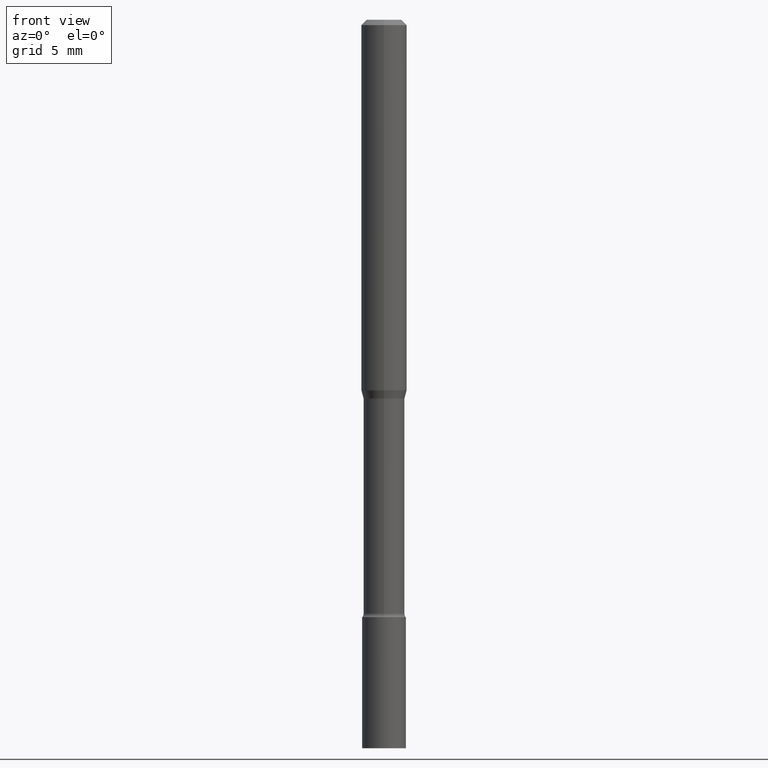
[diagram: clean part render]
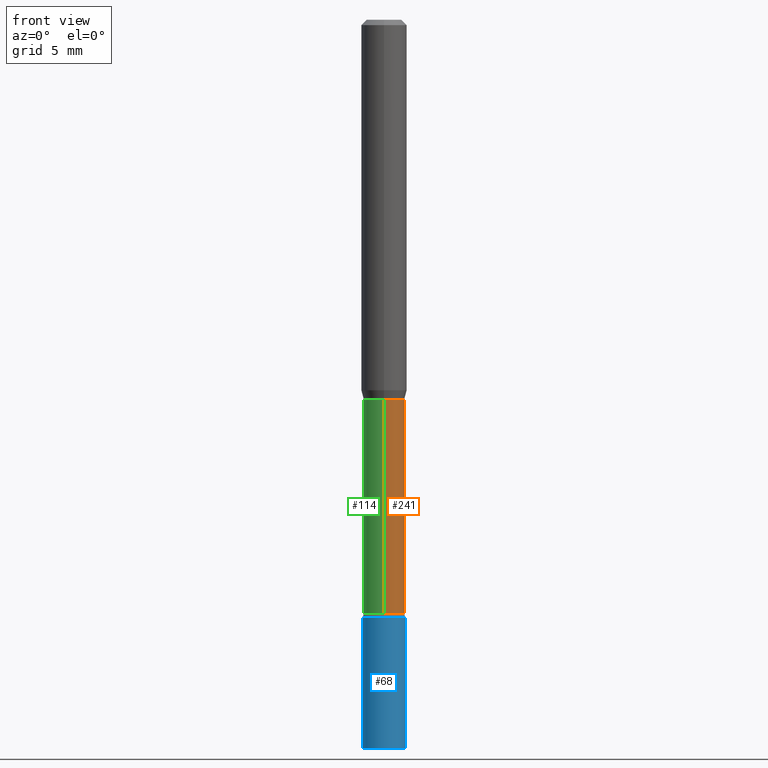
[diagram: same view with three faces highlighted in distinct colors, each labeled with its STEP entity id]
A machine part, front view with three faces highlighted in distinct colors.
Their STEP definitions:

[orange] entity #241 — the highlighted cylindrical surface (edge-blend (fillet) strip) has radius 1.4326 mm, axis along (-0, 0, 1).
#7 = AXIS2_PLACEMENT_3D ( 'NONE', #405, #157, #76 ) ;
#29 = ORIENTED_EDGE ( 'NONE', *, *, #348, .T. ) ;
#36 = DIRECTION ( 'NONE',  ( -6.982962677686265133E-15, -1.000000000000000000, 3.491492737525173500E-15 ) ) ;
#40 = CARTESIAN_POINT ( 'NONE',  ( 4.007461029686965945E-16, 0.05640000000000001956, -1.969201903964198546E-16 ) ) ;
#47 = DIRECTION ( 'NONE',  ( -2.445460846528019435E-29, 3.491492737525173105E-15, 1.000000000000000000 ) ) ;
#76 = DIRECTION ( 'NONE',  ( -6.982962677686265922E-15, -1.000000000000000000, 2.421851058212999609E-15 ) ) ;
#86 = DIRECTION ( 'NONE',  ( -2.445460846528019435E-29, 3.491492737525173105E-15, 1.000000000000000000 ) ) ;
#117 = DIRECTION ( 'NONE',  ( -2.445460846528019435E-29, 3.491492737525173105E-15, 1.000000000000000000 ) ) ;
#131 = AXIS2_PLACEMENT_3D ( 'NONE', #516, #519, #36 ) ;
#143 = CIRCLE ( 'NONE', #384, 0.05640000000000004732 ) ;
#147 = EDGE_CURVE ( 'NONE', #425, #190, #286, .T. ) ;
#157 = DIRECTION ( 'NONE',  ( -2.445460846528019435E-29, 3.491492737525173105E-15, 1.000000000000000000 ) ) ;
#171 = DIRECTION ( 'NONE',  ( -6.982962677686265133E-15, -1.000000000000000000, 4.843702116425994485E-15 ) ) ;
#178 = VERTEX_POINT ( 'NONE', #288 ) ;
#190 = VERTEX_POINT ( 'NONE', #201 ) ;
#201 = CARTESIAN_POINT ( 'NONE',  ( 4.007461029687364320E-16, 0.05639999999999635583, -1.041974787463811003 ) ) ;
#207 = EDGE_CURVE ( 'NONE', #357, #190, #367, .T. ) ;
#241 = ADVANCED_FACE ( 'NONE', ( #401 ), #249, .T. ) ;
#249 = CYLINDRICAL_SURFACE ( 'NONE', #131, 0.05640000000000001956 ) ;
#261 = ORIENTED_EDGE ( 'NONE', *, *, #207, .F. ) ;
#286 = LINE ( 'NONE', #40, #478 ) ;
#288 = CARTESIAN_POINT ( 'NONE',  ( -3.938390950214658630E-16, -0.05640000000000573721, -1.630251153914436646 ) ) ;
#316 = ORIENTED_EDGE ( 'NONE', *, *, #147, .T. ) ;
#324 = CARTESIAN_POINT ( 'NONE',  ( 4.135358722124185524E-16, 0.05639999999999435049, -1.630251153914437090 ) ) ;
#335 = CARTESIAN_POINT ( 'NONE',  ( -3.938390950214798652E-16, -0.05640000000000363473, -1.041974787463810781 ) ) ;
#340 = CARTESIAN_POINT ( 'NONE',  ( 3.986715366904879250E-29, -5.692010064234288967E-15, -1.630251153914436868 ) ) ;
#347 = EDGE_LOOP ( 'NONE', ( #29, #316, #261, #472 ) ) ;
#348 = EDGE_CURVE ( 'NONE', #178, #425, #143, .T. ) ;
#355 = VECTOR ( 'NONE', #86, 39.37007874015748143 ) ;
#357 = VERTEX_POINT ( 'NONE', #335 ) ;
#363 = EDGE_CURVE ( 'NONE', #178, #357, #380, .T. ) ;
#367 = CIRCLE ( 'NONE', #7, 0.05639999999999999181 ) ;
#380 = LINE ( 'NONE', #415, #355 ) ;
#384 = AXIS2_PLACEMENT_3D ( 'NONE', #340, #47, #171 ) ;
#401 = FACE_OUTER_BOUND ( 'NONE', #347, .T. ) ;
#405 = CARTESIAN_POINT ( 'NONE',  ( 2.548108545812103926E-29, -3.638047403114231649E-15, -1.041974787463810781 ) ) ;
#415 = CARTESIAN_POINT ( 'NONE',  ( -3.938390950215055032E-16, -0.05640000000000001956, 1.969201903964198546E-16 ) ) ;
#425 = VERTEX_POINT ( 'NONE', #324 ) ;
#472 = ORIENTED_EDGE ( 'NONE', *, *, #363, .F. ) ;
#478 = VECTOR ( 'NONE', #117, 39.37007874015748143 ) ;
#516 = CARTESIAN_POINT ( 'NONE',  ( 0.000000000000000000, 0.000000000000000000, 0.000000000000000000 ) ) ;
#519 = DIRECTION ( 'NONE',  ( -2.445460846528019435E-29, 3.491492737525173105E-15, 1.000000000000000000 ) ) ;

[blue] entity #68 — the highlighted cylindrical surface (edge-blend (fillet) strip) has radius 1.524 mm, axis along (-0, 0, 1).
#2 = LINE ( 'NONE', #295, #329 ) ;
#6 = DIRECTION ( 'NONE',  ( -2.445468806185136597E-29, 3.491481338843145583E-15, 1.000000000000000000 ) ) ;
#12 = CARTESIAN_POINT ( 'NONE',  ( 4.010568842143624288E-29, -5.726029395702758897E-15, -1.639999999999999902 ) ) ;
#22 = ORIENTED_EDGE ( 'NONE', *, *, #333, .T. ) ;
#51 = VERTEX_POINT ( 'NONE', #461 ) ;
#68 = ADVANCED_FACE ( 'NONE', ( #388 ), #499, .T. ) ;
#97 = VERTEX_POINT ( 'NONE', #108 ) ;
#108 = CARTESIAN_POINT ( 'NONE',  ( 0.05999999999999999778, -7.401940438347467010E-15, -2.000000000000000000 ) ) ;
#109 = VECTOR ( 'NONE', #325, 39.37007874015748143 ) ;
#111 = ORIENTED_EDGE ( 'NONE', *, *, #379, .F. ) ;
#124 = CIRCLE ( 'NONE', #151, 0.05999999999999999778 ) ;
#130 = DIRECTION ( 'NONE',  ( 1.000000000000000000, -6.982962677686268288E-15, 0.000000000000000000 ) ) ;
#151 = AXIS2_PLACEMENT_3D ( 'NONE', #12, #6, #130 ) ;
#183 = ORIENTED_EDGE ( 'NONE', *, *, #239, .F. ) ;
#213 = AXIS2_PLACEMENT_3D ( 'NONE', #420, #303, #458 ) ;
#239 = EDGE_CURVE ( 'NONE', #51, #419, #477, .T. ) ;
#240 = CARTESIAN_POINT ( 'NONE',  ( 0.05999999999999999778, -6.145007156363934742E-15, -1.639999999999999902 ) ) ;
#263 = VERTEX_POINT ( 'NONE', #240 ) ;
#265 = CARTESIAN_POINT ( 'NONE',  ( 0.000000000000000000, 0.000000000000000000, 0.000000000000000000 ) ) ;
#289 = AXIS2_PLACEMENT_3D ( 'NONE', #265, #314, #432 ) ;
#295 = CARTESIAN_POINT ( 'NONE',  ( 0.05999999999999999778, -4.189777606611760421E-16, 2.925706065477561756E-30 ) ) ;
#302 = CIRCLE ( 'NONE', #213, 0.05999999999999999778 ) ;
#303 = DIRECTION ( 'NONE',  ( -2.445468806185136597E-29, 3.491481338843145583E-15, 1.000000000000000000 ) ) ;
#312 = ORIENTED_EDGE ( 'NONE', *, *, #398, .T. ) ;
#314 = DIRECTION ( 'NONE',  ( -2.445468806185136597E-29, 3.491481338843145583E-15, 1.000000000000000000 ) ) ;
#325 = DIRECTION ( 'NONE',  ( -2.445468806185136877E-29, 3.491481338843145188E-15, 1.000000000000000000 ) ) ;
#329 = VECTOR ( 'NONE', #373, 39.37007874015748143 ) ;
#333 = EDGE_CURVE ( 'NONE', #97, #263, #2, .T. ) ;
#373 = DIRECTION ( 'NONE',  ( -2.445468806185136877E-29, 3.491481338843145188E-15, 1.000000000000000000 ) ) ;
#379 = EDGE_CURVE ( 'NONE', #419, #263, #124, .T. ) ;
#388 = FACE_OUTER_BOUND ( 'NONE', #494, .T. ) ;
#398 = EDGE_CURVE ( 'NONE', #51, #97, #302, .T. ) ;
#419 = VERTEX_POINT ( 'NONE', #459 ) ;
#420 = CARTESIAN_POINT ( 'NONE',  ( 4.890937612370273194E-29, -6.982962677686291165E-15, -2.000000000000000000 ) ) ;
#432 = DIRECTION ( 'NONE',  ( 1.000000000000000000, -6.982962677686267499E-15, 4.876176775795936353E-29 ) ) ;
#442 = CARTESIAN_POINT ( 'NONE',  ( -0.05999999999999999778, 4.263256414560600957E-16, -2.951361054152943413E-30 ) ) ;
#458 = DIRECTION ( 'NONE',  ( 1.000000000000000000, -6.982962677686268288E-15, 0.000000000000000000 ) ) ;
#459 = CARTESIAN_POINT ( 'NONE',  ( -0.05999999999999999778, -5.928170395238464936E-15, -1.639999999999999902 ) ) ;
#461 = CARTESIAN_POINT ( 'NONE',  ( -0.05999999999999999778, -5.928170395238464936E-15, -2.000000000000000000 ) ) ;
#477 = LINE ( 'NONE', #442, #109 ) ;
#494 = EDGE_LOOP ( 'NONE', ( #183, #312, #22, #111 ) ) ;
#499 = CYLINDRICAL_SURFACE ( 'NONE', #289, 0.05999999999999999778 ) ;

[green] entity #114 — the highlighted cylindrical surface (edge-blend (fillet) strip) has radius 1.4326 mm, axis along (-0, 0, 1).
#35 = CARTESIAN_POINT ( 'NONE',  ( 0.000000000000000000, 0.000000000000000000, 0.000000000000000000 ) ) ;
#40 = CARTESIAN_POINT ( 'NONE',  ( 4.007461029686965945E-16, 0.05640000000000001956, -1.969201903964198546E-16 ) ) ;
#86 = DIRECTION ( 'NONE',  ( -2.445460846528019435E-29, 3.491492737525173105E-15, 1.000000000000000000 ) ) ;
#100 = DIRECTION ( 'NONE',  ( -6.982962677686265133E-15, -1.000000000000000000, 3.491492737525173500E-15 ) ) ;
#114 = ADVANCED_FACE ( 'NONE', ( #463 ), #237, .T. ) ;
#117 = DIRECTION ( 'NONE',  ( -2.445460846528019435E-29, 3.491492737525173105E-15, 1.000000000000000000 ) ) ;
#127 = DIRECTION ( 'NONE',  ( -2.445460846528019435E-29, 3.491492737525173105E-15, 1.000000000000000000 ) ) ;
#136 = EDGE_CURVE ( 'NONE', #190, #357, #413, .T. ) ;
#147 = EDGE_CURVE ( 'NONE', #425, #190, #286, .T. ) ;
#178 = VERTEX_POINT ( 'NONE', #288 ) ;
#186 = ORIENTED_EDGE ( 'NONE', *, *, #147, .F. ) ;
#189 = AXIS2_PLACEMENT_3D ( 'NONE', #209, #127, #255 ) ;
#190 = VERTEX_POINT ( 'NONE', #201 ) ;
#201 = CARTESIAN_POINT ( 'NONE',  ( 4.007461029687364320E-16, 0.05639999999999635583, -1.041974787463811003 ) ) ;
#209 = CARTESIAN_POINT ( 'NONE',  ( 3.986715366904879250E-29, -5.692010064234288967E-15, -1.630251153914436868 ) ) ;
#237 = CYLINDRICAL_SURFACE ( 'NONE', #293, 0.05640000000000001956 ) ;
#255 = DIRECTION ( 'NONE',  ( -6.982962677686265133E-15, -1.000000000000000000, 4.843702116425994485E-15 ) ) ;
#286 = LINE ( 'NONE', #40, #478 ) ;
#288 = CARTESIAN_POINT ( 'NONE',  ( -3.938390950214658630E-16, -0.05640000000000573721, -1.630251153914436646 ) ) ;
#293 = AXIS2_PLACEMENT_3D ( 'NONE', #35, #311, #100 ) ;
#311 = DIRECTION ( 'NONE',  ( -2.445460846528019435E-29, 3.491492737525173105E-15, 1.000000000000000000 ) ) ;
#324 = CARTESIAN_POINT ( 'NONE',  ( 4.135358722124185524E-16, 0.05639999999999435049, -1.630251153914437090 ) ) ;
#328 = AXIS2_PLACEMENT_3D ( 'NONE', #386, #390, #356 ) ;
#335 = CARTESIAN_POINT ( 'NONE',  ( -3.938390950214798652E-16, -0.05640000000000363473, -1.041974787463810781 ) ) ;
#355 = VECTOR ( 'NONE', #86, 39.37007874015748143 ) ;
#356 = DIRECTION ( 'NONE',  ( -6.982962677686265922E-15, -1.000000000000000000, 2.421851058212999609E-15 ) ) ;
#357 = VERTEX_POINT ( 'NONE', #335 ) ;
#359 = EDGE_LOOP ( 'NONE', ( #186, #457, #498, #393 ) ) ;
#363 = EDGE_CURVE ( 'NONE', #178, #357, #380, .T. ) ;
#369 = CIRCLE ( 'NONE', #189, 0.05640000000000004732 ) ;
#380 = LINE ( 'NONE', #415, #355 ) ;
#386 = CARTESIAN_POINT ( 'NONE',  ( 2.548108545812103926E-29, -3.638047403114231649E-15, -1.041974787463810781 ) ) ;
#390 = DIRECTION ( 'NONE',  ( -2.445460846528019435E-29, 3.491492737525173105E-15, 1.000000000000000000 ) ) ;
#393 = ORIENTED_EDGE ( 'NONE', *, *, #136, .F. ) ;
#413 = CIRCLE ( 'NONE', #328, 0.05639999999999999181 ) ;
#415 = CARTESIAN_POINT ( 'NONE',  ( -3.938390950215055032E-16, -0.05640000000000001956, 1.969201903964198546E-16 ) ) ;
#425 = VERTEX_POINT ( 'NONE', #324 ) ;
#457 = ORIENTED_EDGE ( 'NONE', *, *, #495, .T. ) ;
#463 = FACE_OUTER_BOUND ( 'NONE', #359, .T. ) ;
#478 = VECTOR ( 'NONE', #117, 39.37007874015748143 ) ;
#495 = EDGE_CURVE ( 'NONE', #425, #178, #369, .T. ) ;
#498 = ORIENTED_EDGE ( 'NONE', *, *, #363, .T. ) ;